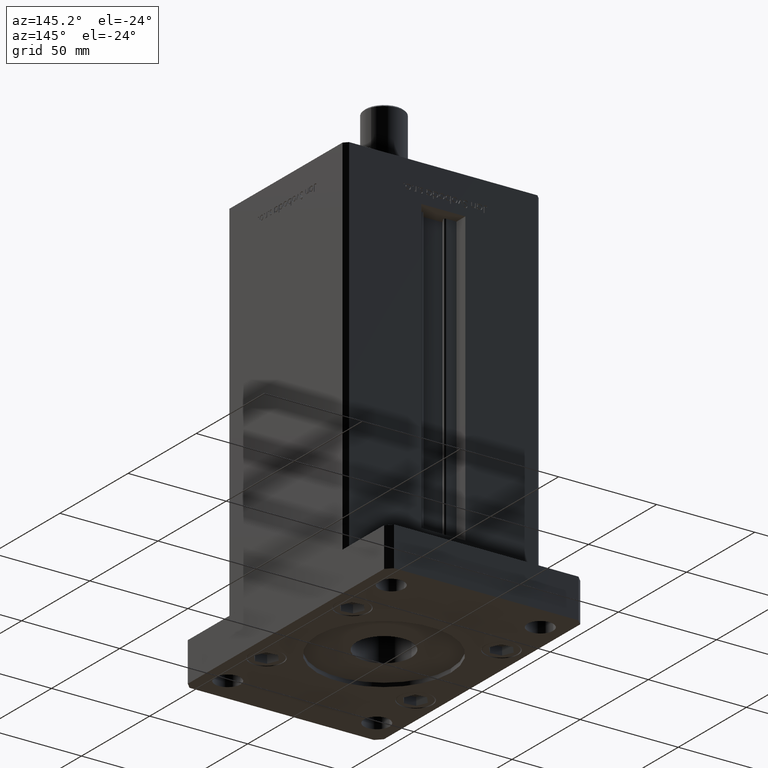
[diagram: clean part render]
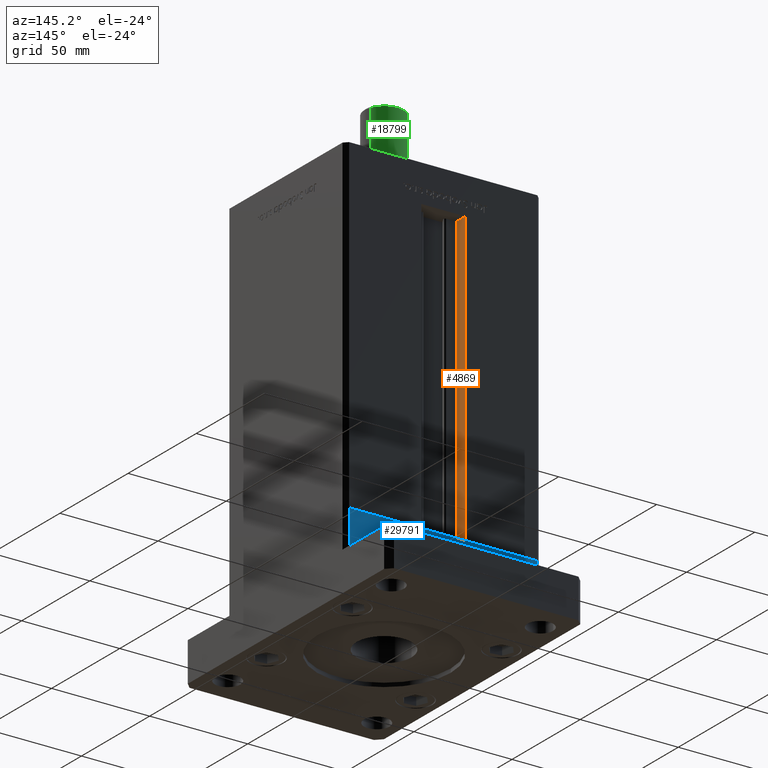
[diagram: same view with three faces highlighted in distinct colors, each labeled with its STEP entity id]
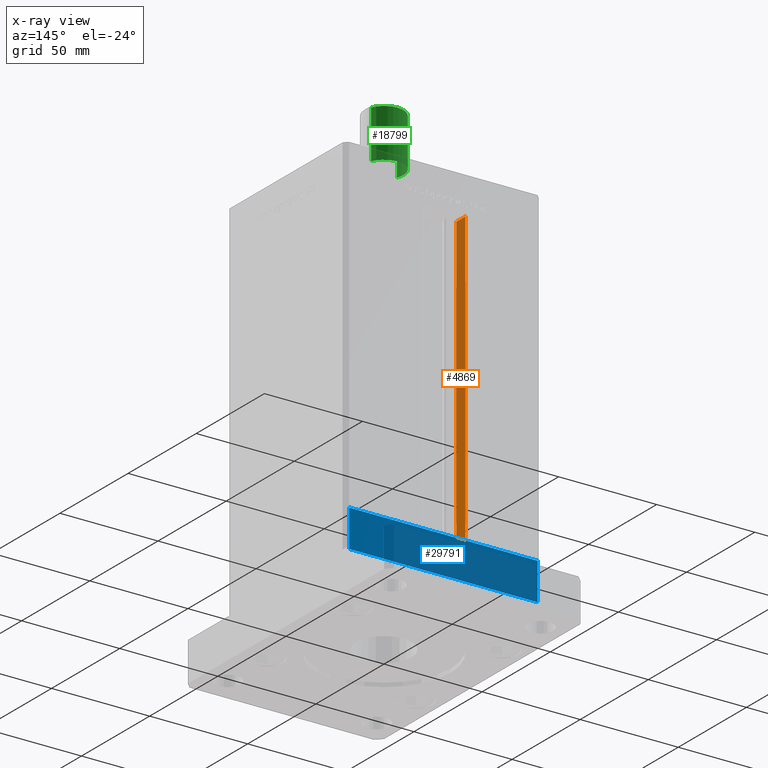
[diagram: x-ray of the same camera — body ghosted, the three highlighted faces saturated]
A machine part, auxiliary view with three faces highlighted in distinct colors.
The next image is the same camera in x-ray (body ghosted, the three faces saturated) — at least one of them is partly hidden behind the body in this view.
Their STEP definitions:

[orange] entity #4869 — the highlighted planar face has unit normal (-1, 0, 0).
#74 = LINE ( 'NONE', #22224, #43722 ) ;
#606 = DIRECTION ( 'NONE',  ( -0.000000000000000000, -0.000000000000000000, 1.000000000000000000 ) ) ;
#1010 = ORIENTED_EDGE ( 'NONE', *, *, #47496, .F. ) ;
#2248 = VECTOR ( 'NONE', #40827, 1000.000000000000000 ) ;
#2695 = CARTESIAN_POINT ( 'NONE',  ( -11.24999999999999822, 36.99999999999999289, 0.000000000000000000 ) ) ;
#3880 = EDGE_CURVE ( 'NONE', #5769, #39733, #74, .T. ) ;
#4869 = ADVANCED_FACE ( 'NONE', ( #25900 ), #38473, .F. ) ;
#5769 = VERTEX_POINT ( 'NONE', #48045 ) ;
#7423 = CARTESIAN_POINT ( 'NONE',  ( -11.24999999999999822, 0.000000000000000000, 148.5000000000000000 ) ) ;
#9476 = CARTESIAN_POINT ( 'NONE',  ( -11.24999999999999822, 36.99999999999999289, 0.000000000000000000 ) ) ;
#9870 = DIRECTION ( 'NONE',  ( -0.000000000000000000, -1.000000000000000000, -0.000000000000000000 ) ) ;
#11579 = CARTESIAN_POINT ( 'NONE',  ( -11.24999999999999822, 36.99999999999999289, 0.000000000000000000 ) ) ;
#12506 = DIRECTION ( 'NONE',  ( -1.000000000000000000, 0.000000000000000000, 0.000000000000000000 ) ) ;
#15311 = VECTOR ( 'NONE', #9870, 1000.000000000000000 ) ;
#15916 = CARTESIAN_POINT ( 'NONE',  ( -11.24999999999999822, 43.50000000000000000, 148.5000000000000000 ) ) ;
#22224 = CARTESIAN_POINT ( 'NONE',  ( -11.24999999999999822, 43.50000000000000000, 0.000000000000000000 ) ) ;
#23562 = EDGE_CURVE ( 'NONE', #28467, #34897, #28532, .T. ) ;
#25900 = FACE_OUTER_BOUND ( 'NONE', #45773, .T. ) ;
#28229 = LINE ( 'NONE', #7423, #2248 ) ;
#28467 = VERTEX_POINT ( 'NONE', #2695 ) ;
#28532 = LINE ( 'NONE', #11579, #47653 ) ;
#28800 = DIRECTION ( 'NONE',  ( -0.000000000000000000, -0.000000000000000000, 1.000000000000000000 ) ) ;
#34140 = AXIS2_PLACEMENT_3D ( 'NONE', #9476, #12506, #42856 ) ;
#34499 = CARTESIAN_POINT ( 'NONE',  ( -11.24999999999999822, 36.99999999999999289, 0.000000000000000000 ) ) ;
#34897 = VERTEX_POINT ( 'NONE', #45632 ) ;
#36270 = ORIENTED_EDGE ( 'NONE', *, *, #23562, .F. ) ;
#38473 = PLANE ( 'NONE',  #34140 ) ;
#39733 = VERTEX_POINT ( 'NONE', #15916 ) ;
#40209 = ORIENTED_EDGE ( 'NONE', *, *, #3880, .T. ) ;
#40827 = DIRECTION ( 'NONE',  ( 0.000000000000000000, 1.000000000000000000, 0.000000000000000000 ) ) ;
#42729 = LINE ( 'NONE', #34499, #15311 ) ;
#42856 = DIRECTION ( 'NONE',  ( 0.000000000000000000, 0.000000000000000000, 1.000000000000000000 ) ) ;
#43722 = VECTOR ( 'NONE', #606, 1000.000000000000000 ) ;
#43886 = ORIENTED_EDGE ( 'NONE', *, *, #44327, .F. ) ;
#44327 = EDGE_CURVE ( 'NONE', #34897, #39733, #28229, .T. ) ;
#45632 = CARTESIAN_POINT ( 'NONE',  ( -11.24999999999999822, 36.99999999999999289, 148.5000000000000000 ) ) ;
#45773 = EDGE_LOOP ( 'NONE', ( #36270, #1010, #40209, #43886 ) ) ;
#47496 = EDGE_CURVE ( 'NONE', #5769, #28467, #42729, .T. ) ;
#47653 = VECTOR ( 'NONE', #28800, 1000.000000000000000 ) ;
#48045 = CARTESIAN_POINT ( 'NONE',  ( -11.24999999999999822, 43.50000000000000000, 0.000000000000000000 ) ) ;

[blue] entity #29791 — the highlighted planar face has unit normal (0, 1, 0).
#2015 = VECTOR ( 'NONE', #32830, 1000.000000000000000 ) ;
#2306 = PLANE ( 'NONE',  #38114 ) ;
#3947 = EDGE_CURVE ( 'NONE', #19313, #9866, #48956, .T. ) ;
#7924 = CARTESIAN_POINT ( 'NONE',  ( 47.99999999999990763, 43.50000000000000000, 0.000000000000000000 ) ) ;
#9866 = VERTEX_POINT ( 'NONE', #34804 ) ;
#10852 = CARTESIAN_POINT ( 'NONE',  ( -48.00000000000000711, 43.49999999999996447, -19.00000000000000000 ) ) ;
#12007 = VECTOR ( 'NONE', #44236, 1000.000000000000000 ) ;
#12080 = VECTOR ( 'NONE', #15943, 1000.000000000000000 ) ;
#13133 = VECTOR ( 'NONE', #19673, 1000.000000000000000 ) ;
#13300 = VERTEX_POINT ( 'NONE', #40441 ) ;
#13881 = CARTESIAN_POINT ( 'NONE',  ( -48.00000000000000711, 43.49999999999996447, 0.000000000000000000 ) ) ;
#14708 = ORIENTED_EDGE ( 'NONE', *, *, #37971, .F. ) ;
#14900 = DIRECTION ( 'NONE',  ( -3.614007241618350743E-16, 1.000000000000000000, 0.000000000000000000 ) ) ;
#15422 = VERTEX_POINT ( 'NONE', #13881 ) ;
#15943 = DIRECTION ( 'NONE',  ( -1.000000000000000000, -3.614007241618350743E-16, 0.000000000000000000 ) ) ;
#19313 = VERTEX_POINT ( 'NONE', #34345 ) ;
#19551 = FACE_OUTER_BOUND ( 'NONE', #49461, .T. ) ;
#19673 = DIRECTION ( 'NONE',  ( 0.000000000000000000, 0.000000000000000000, 1.000000000000000000 ) ) ;
#20071 = ORIENTED_EDGE ( 'NONE', *, *, #34322, .T. ) ;
#23555 = ORIENTED_EDGE ( 'NONE', *, *, #28737, .T. ) ;
#27264 = LINE ( 'NONE', #10852, #12007 ) ;
#28737 = EDGE_CURVE ( 'NONE', #13300, #15422, #27264, .T. ) ;
#29791 = ADVANCED_FACE ( 'NONE', ( #19551 ), #2306, .T. ) ;
#32830 = DIRECTION ( 'NONE',  ( -1.000000000000000000, -3.614007241618350743E-16, 0.000000000000000000 ) ) ;
#32890 = LINE ( 'NONE', #49863, #12080 ) ;
#34322 = EDGE_CURVE ( 'NONE', #19313, #13300, #32890, .T. ) ;
#34345 = CARTESIAN_POINT ( 'NONE',  ( 47.99999999999990763, 43.50000000000000000, -19.00000000000000000 ) ) ;
#34804 = CARTESIAN_POINT ( 'NONE',  ( 47.99999999999990763, 43.50000000000000000, 0.000000000000000000 ) ) ;
#37971 = EDGE_CURVE ( 'NONE', #9866, #15422, #53646, .T. ) ;
#38114 = AXIS2_PLACEMENT_3D ( 'NONE', #52670, #14900, #48281 ) ;
#40441 = CARTESIAN_POINT ( 'NONE',  ( -48.00000000000000711, 43.49999999999996447, -19.00000000000000000 ) ) ;
#42275 = ORIENTED_EDGE ( 'NONE', *, *, #3947, .F. ) ;
#44236 = DIRECTION ( 'NONE',  ( 0.000000000000000000, 0.000000000000000000, 1.000000000000000000 ) ) ;
#48281 = DIRECTION ( 'NONE',  ( -1.000000000000000000, -3.614007241618350743E-16, 0.000000000000000000 ) ) ;
#48956 = LINE ( 'NONE', #52249, #13133 ) ;
#49461 = EDGE_LOOP ( 'NONE', ( #14708, #42275, #20071, #23555 ) ) ;
#49863 = CARTESIAN_POINT ( 'NONE',  ( 47.99999999999990763, 43.50000000000000000, -19.00000000000000000 ) ) ;
#52249 = CARTESIAN_POINT ( 'NONE',  ( 47.99999999999990763, 43.50000000000000000, -19.00000000000000000 ) ) ;
#52670 = CARTESIAN_POINT ( 'NONE',  ( 47.99999999999990763, 43.50000000000000000, -19.00000000000000000 ) ) ;
#53646 = LINE ( 'NONE', #7924, #2015 ) ;

[green] entity #18799 — the highlighted cylindrical surface (edge-blend (fillet) strip) has radius 10 mm, axis along (0, 0, 1).
#1267 = CARTESIAN_POINT ( 'NONE',  ( 0.000000000000000000, 0.000000000000000000, 0.7999999999999986011 ) ) ;
#2102 = AXIS2_PLACEMENT_3D ( 'NONE', #6890, #2783, #19488 ) ;
#2783 = DIRECTION ( 'NONE',  ( -0.000000000000000000, -0.000000000000000000, -1.000000000000000000 ) ) ;
#3516 = DIRECTION ( 'NONE',  ( -0.000000000000000000, -0.000000000000000000, -1.000000000000000000 ) ) ;
#5647 = DIRECTION ( 'NONE',  ( -0.000000000000000000, -0.000000000000000000, 1.000000000000000000 ) ) ;
#6104 = ORIENTED_EDGE ( 'NONE', *, *, #53635, .T. ) ;
#6890 = CARTESIAN_POINT ( 'NONE',  ( 0.000000000000000000, 0.000000000000000000, 25.50000000000000000 ) ) ;
#7627 = LINE ( 'NONE', #19960, #21491 ) ;
#9118 = CARTESIAN_POINT ( 'NONE',  ( 10.00000000000000000, 1.224646799147353256E-15, 25.50000000000000000 ) ) ;
#10480 = CARTESIAN_POINT ( 'NONE',  ( 10.00000000000000000, 1.224646799147353256E-15, 0.7999999999999986011 ) ) ;
#11233 = CARTESIAN_POINT ( 'NONE',  ( -10.00000000000000000, 0.000000000000000000, 25.50000000000000000 ) ) ;
#14637 = CIRCLE ( 'NONE', #52224, 10.00000000000000000 ) ;
#14712 = CARTESIAN_POINT ( 'NONE',  ( 0.000000000000000000, 0.000000000000000000, 25.50000000000000000 ) ) ;
#16351 = EDGE_CURVE ( 'NONE', #41061, #52808, #21270, .T. ) ;
#18516 = DIRECTION ( 'NONE',  ( 1.000000000000000000, 0.000000000000000000, 0.000000000000000000 ) ) ;
#18799 = ADVANCED_FACE ( 'NONE', ( #23332 ), #39467, .T. ) ;
#19488 = DIRECTION ( 'NONE',  ( -1.000000000000000000, 0.000000000000000000, 0.000000000000000000 ) ) ;
#19960 = CARTESIAN_POINT ( 'NONE',  ( 10.00000000000000000, 1.224646799147353256E-15, 25.50000000000000000 ) ) ;
#21270 = CIRCLE ( 'NONE', #50090, 10.00000000000000000 ) ;
#21491 = VECTOR ( 'NONE', #3516, 1000.000000000000000 ) ;
#23332 = FACE_OUTER_BOUND ( 'NONE', #29159, .T. ) ;
#24776 = CARTESIAN_POINT ( 'NONE',  ( -10.00000000000000000, 0.000000000000000000, 25.50000000000000000 ) ) ;
#25187 = VERTEX_POINT ( 'NONE', #47198 ) ;
#29159 = EDGE_LOOP ( 'NONE', ( #33642, #52515, #6104, #47581 ) ) ;
#31682 = VECTOR ( 'NONE', #50762, 1000.000000000000000 ) ;
#33642 = ORIENTED_EDGE ( 'NONE', *, *, #16351, .F. ) ;
#34050 = LINE ( 'NONE', #24776, #31682 ) ;
#34257 = VERTEX_POINT ( 'NONE', #10480 ) ;
#36083 = EDGE_CURVE ( 'NONE', #52808, #25187, #34050, .T. ) ;
#39467 = CYLINDRICAL_SURFACE ( 'NONE', #2102, 10.00000000000000000 ) ;
#41061 = VERTEX_POINT ( 'NONE', #9118 ) ;
#43445 = DIRECTION ( 'NONE',  ( 1.000000000000000000, 0.000000000000000000, 0.000000000000000000 ) ) ;
#44700 = EDGE_CURVE ( 'NONE', #41061, #34257, #7627, .T. ) ;
#47198 = CARTESIAN_POINT ( 'NONE',  ( -10.00000000000000000, 0.000000000000000000, 0.7999999999999986011 ) ) ;
#47581 = ORIENTED_EDGE ( 'NONE', *, *, #36083, .F. ) ;
#50090 = AXIS2_PLACEMENT_3D ( 'NONE', #14712, #52479, #43445 ) ;
#50762 = DIRECTION ( 'NONE',  ( -0.000000000000000000, -0.000000000000000000, -1.000000000000000000 ) ) ;
#52224 = AXIS2_PLACEMENT_3D ( 'NONE', #1267, #5647, #18516 ) ;
#52479 = DIRECTION ( 'NONE',  ( 0.000000000000000000, 0.000000000000000000, 1.000000000000000000 ) ) ;
#52515 = ORIENTED_EDGE ( 'NONE', *, *, #44700, .T. ) ;
#52808 = VERTEX_POINT ( 'NONE', #11233 ) ;
#53635 = EDGE_CURVE ( 'NONE', #34257, #25187, #14637, .T. ) ;